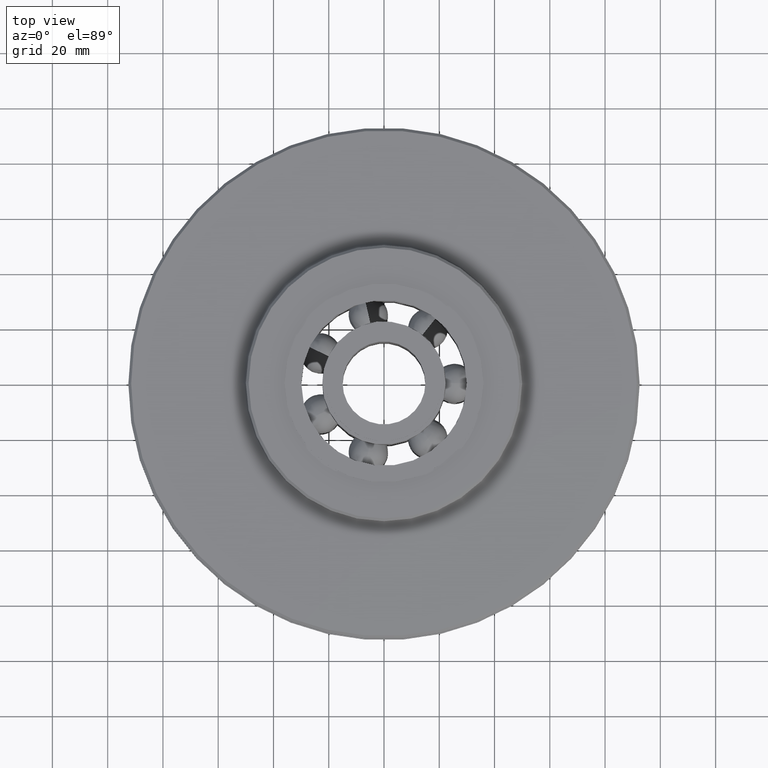
[diagram: clean part render]
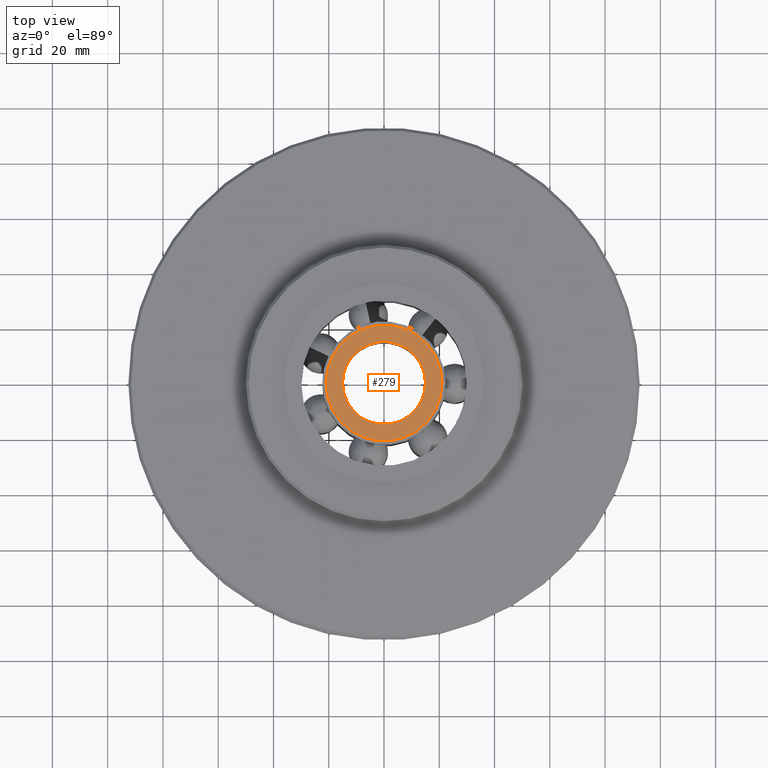
[diagram: same view with one face highlighted and labeled with its STEP entity id]
A machine part, top view. The second image highlights one B-rep face of the part: STEP entity #279.
In plain terms, the highlighted planar face has unit normal (0, 0, 1).
Its self-contained STEP definition (entity closure, byte-faithful):
#279=ADVANCED_FACE('',(#623,#624),#625,.T.);
#623=FACE_BOUND('',#1041,.T.);
#624=FACE_OUTER_BOUND('',#1042,.T.);
#625=PLANE('',#1043);
#1041=EDGE_LOOP('',(#1893,#1894));
#1042=EDGE_LOOP('',(#1895,#1896));
#1043=AXIS2_PLACEMENT_3D('',#1897,#1898,#1899);
#1893=ORIENTED_EDGE('',*,*,#2938,.T.);
#1894=ORIENTED_EDGE('',*,*,#2806,.T.);
#1895=ORIENTED_EDGE('',*,*,#2923,.T.);
#1896=ORIENTED_EDGE('',*,*,#2935,.T.);
#1897=CARTESIAN_POINT('',(0.0,0.0,21.25));
#1898=DIRECTION('',(0.0,0.0,1.0));
#1899=DIRECTION('',(1.0,0.0,0.0));
#2806=EDGE_CURVE('',#3495,#3492,#3496,.T.);
#2923=EDGE_CURVE('',#3688,#3692,#3694,.T.);
#2935=EDGE_CURVE('',#3692,#3688,#3710,.T.);
#2938=EDGE_CURVE('',#3492,#3495,#3713,.T.);
#3492=VERTEX_POINT('',#6235);
#3495=VERTEX_POINT('',#6239);
#3496=CIRCLE('',#6240,15.0);
#3688=VERTEX_POINT('',#7305);
#3692=VERTEX_POINT('',#7310);
#3694=CIRCLE('',#7313,21.0);
#3710=CIRCLE('',#7331,21.0);
#3713=CIRCLE('',#7334,15.0);
#6235=CARTESIAN_POINT('',(15.0,0.0,21.25));
#6239=CARTESIAN_POINT('',(-15.0,1.83697019872103E-015,21.25));
#6240=AXIS2_PLACEMENT_3D('',#8849,#8850,#8851);
#7305=CARTESIAN_POINT('',(21.0,0.0,21.25));
#7310=CARTESIAN_POINT('',(-21.0,2.57175827820944E-015,21.25));
#7313=AXIS2_PLACEMENT_3D('',#9003,#9004,#9005);
#7331=AXIS2_PLACEMENT_3D('',#9023,#9024,#9025);
#7334=AXIS2_PLACEMENT_3D('',#9029,#9030,#9031);
#8849=CARTESIAN_POINT('',(0.0,0.0,21.25));
#8850=DIRECTION('',(0.0,0.0,-1.0));
#8851=DIRECTION('',(1.0,0.0,0.0));
#9003=CARTESIAN_POINT('',(0.0,0.0,21.25));
#9004=DIRECTION('',(0.0,0.0,1.0));
#9005=DIRECTION('',(1.0,0.0,0.0));
#9023=CARTESIAN_POINT('',(0.0,0.0,21.25));
#9024=DIRECTION('',(0.0,0.0,1.0));
#9025=DIRECTION('',(1.0,0.0,0.0));
#9029=CARTESIAN_POINT('',(0.0,0.0,21.25));
#9030=DIRECTION('',(0.0,0.0,-1.0));
#9031=DIRECTION('',(1.0,0.0,0.0));